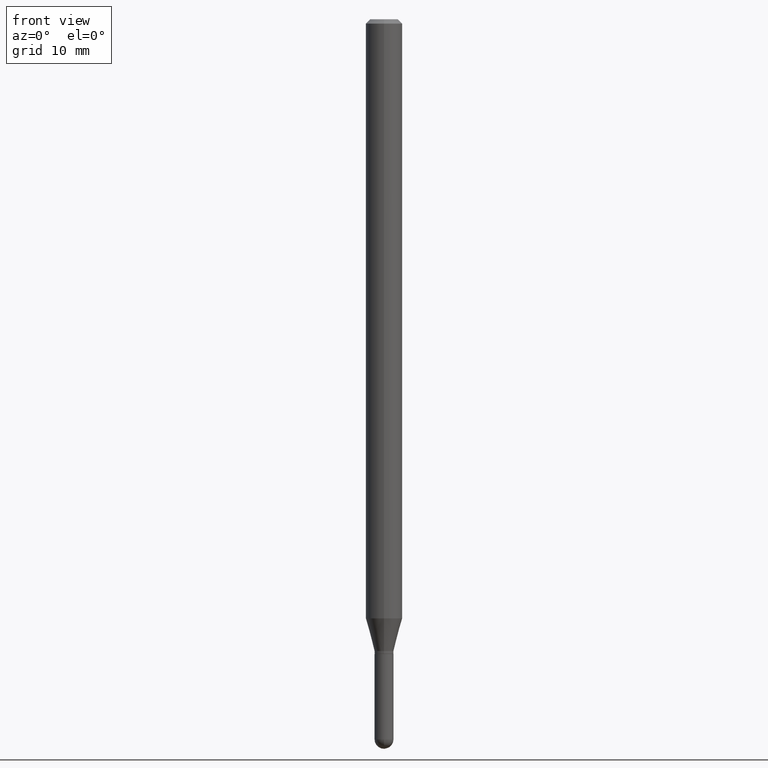
[diagram: clean part render]
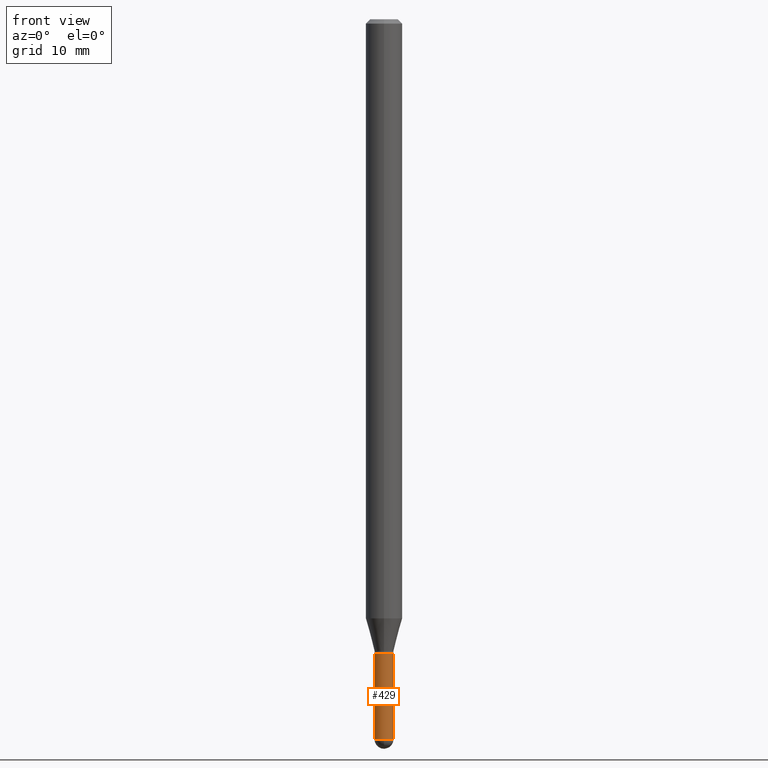
[diagram: same view with one face highlighted and labeled with its STEP entity id]
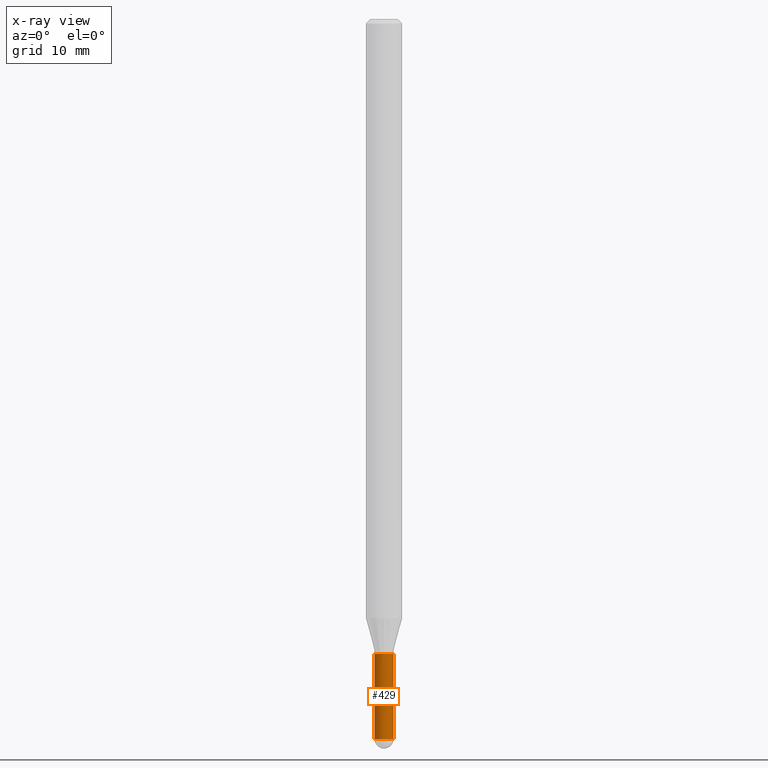
[diagram: x-ray of the same camera — body ghosted, the highlighted face saturated]
A machine part, front view. The second image highlights one B-rep face of the part: STEP entity #429.
The next image is the same camera in x-ray: the body ghosted, the highlighted face saturated — about 0% of this face is hidden behind the body in this view.
In plain terms, the highlighted cylindrical surface (edge-blend (fillet) strip) has radius 0.8255 mm, axis along (-0, 0, 1).
Its self-contained STEP definition (entity closure, byte-faithful):
#3 = ORIENTED_EDGE ( 'NONE', *, *, #155, .F. ) ;
#22 = DIRECTION ( 'NONE',  ( -2.445468806185136597E-29, 3.491481338843145583E-15, 1.000000000000000000 ) ) ;
#33 = AXIS2_PLACEMENT_3D ( 'NONE', #455, #457, #323 ) ;
#40 = CARTESIAN_POINT ( 'NONE',  ( -0.03250000000000000111, -7.873674668667618619E-15, -2.175000000000000266 ) ) ;
#42 = VERTEX_POINT ( 'NONE', #40 ) ;
#43 = AXIS2_PLACEMENT_3D ( 'NONE', #282, #510, #471 ) ;
#61 = CARTESIAN_POINT ( 'NONE',  ( -2.309263891219727135E-16, -0.03250000000000868861, -2.467499999999999805 ) ) ;
#67 = FACE_OUTER_BOUND ( 'NONE', #194, .T. ) ;
#87 = DIRECTION ( 'NONE',  ( -2.445468806185136877E-29, 3.491481338843145188E-15, 1.000000000000000000 ) ) ;
#107 = EDGE_CURVE ( 'NONE', #294, #261, #417, .T. ) ;
#138 = CARTESIAN_POINT ( 'NONE',  ( 0.03250000000000000111, -8.331547344814454343E-15, -2.467499999999999805 ) ) ;
#149 = DIRECTION ( 'NONE',  ( 1.000000000000000000, -6.982962677686287221E-15, 0.000000000000000000 ) ) ;
#155 = EDGE_CURVE ( 'NONE', #303, #42, #412, .T. ) ;
#162 = AXIS2_PLACEMENT_3D ( 'NONE', #269, #340, #149 ) ;
#174 = CARTESIAN_POINT ( 'NONE',  ( -0.03250000000000000111, 2.309263891220325683E-16, -1.598653904332844407E-30 ) ) ;
#185 = DIRECTION ( 'NONE',  ( 1.000000000000000000, -6.982962677686258033E-15, 0.000000000000000000 ) ) ;
#193 = EDGE_CURVE ( 'NONE', #261, #300, #361, .T. ) ;
#194 = EDGE_LOOP ( 'NONE', ( #3, #218, #331, #341, #404 ) ) ;
#218 = ORIENTED_EDGE ( 'NONE', *, *, #353, .T. ) ;
#227 = VECTOR ( 'NONE', #87, 39.37007874015748143 ) ;
#261 = VERTEX_POINT ( 'NONE', #138 ) ;
#269 = CARTESIAN_POINT ( 'NONE',  ( 6.034194279261823970E-29, -8.615230203595461689E-15, -2.467499999999999805 ) ) ;
#270 = VECTOR ( 'NONE', #284, 39.37007874015748143 ) ;
#282 = CARTESIAN_POINT ( 'NONE',  ( 0.000000000000000000, 0.000000000000000000, 0.000000000000000000 ) ) ;
#284 = DIRECTION ( 'NONE',  ( -2.445468806185136877E-29, 3.491481338843145188E-15, 1.000000000000000000 ) ) ;
#294 = VERTEX_POINT ( 'NONE', #61 ) ;
#300 = VERTEX_POINT ( 'NONE', #330 ) ;
#303 = VERTEX_POINT ( 'NONE', #468 ) ;
#319 = CARTESIAN_POINT ( 'NONE',  ( 0.03250000000000000111, -2.269462870248036977E-16, 1.584757452133679343E-30 ) ) ;
#320 = AXIS2_PLACEMENT_3D ( 'NONE', #381, #22, #185 ) ;
#323 = DIRECTION ( 'NONE',  ( 1.000000000000000000, -6.982962677686287221E-15, 0.000000000000000000 ) ) ;
#330 = CARTESIAN_POINT ( 'NONE',  ( 0.03250000000000000111, -7.820918199008645222E-15, -2.175000000000000266 ) ) ;
#331 = ORIENTED_EDGE ( 'NONE', *, *, #107, .T. ) ;
#340 = DIRECTION ( 'NONE',  ( -2.445468806185136597E-29, 3.491481338843145583E-15, 1.000000000000000000 ) ) ;
#341 = ORIENTED_EDGE ( 'NONE', *, *, #193, .T. ) ;
#346 = CIRCLE ( 'NONE', #162, 0.03250000000000000111 ) ;
#353 = EDGE_CURVE ( 'NONE', #303, #294, #346, .T. ) ;
#361 = LINE ( 'NONE', #319, #227 ) ;
#375 = CIRCLE ( 'NONE', #320, 0.03250000000000000111 ) ;
#381 = CARTESIAN_POINT ( 'NONE',  ( 5.318894653452672995E-29, -7.593971911983841869E-15, -2.175000000000000266 ) ) ;
#398 = EDGE_CURVE ( 'NONE', #42, #300, #375, .T. ) ;
#404 = ORIENTED_EDGE ( 'NONE', *, *, #398, .F. ) ;
#412 = LINE ( 'NONE', #174, #270 ) ;
#417 = CIRCLE ( 'NONE', #33, 0.03250000000000000111 ) ;
#429 = ADVANCED_FACE ( 'NONE', ( #67 ), #481, .T. ) ;
#455 = CARTESIAN_POINT ( 'NONE',  ( 6.034194279261823970E-29, -8.615230203595461689E-15, -2.467499999999999805 ) ) ;
#457 = DIRECTION ( 'NONE',  ( -2.445468806185136597E-29, 3.491481338843145583E-15, 1.000000000000000000 ) ) ;
#468 = CARTESIAN_POINT ( 'NONE',  ( -0.03250000000000000111, -7.873674668667618619E-15, -2.467499999999999805 ) ) ;
#471 = DIRECTION ( 'NONE',  ( 1.000000000000000000, -6.982962677686267499E-15, 4.876176775795936353E-29 ) ) ;
#481 = CYLINDRICAL_SURFACE ( 'NONE', #43, 0.03250000000000000111 ) ;
#510 = DIRECTION ( 'NONE',  ( -2.445468806185136597E-29, 3.491481338843145583E-15, 1.000000000000000000 ) ) ;